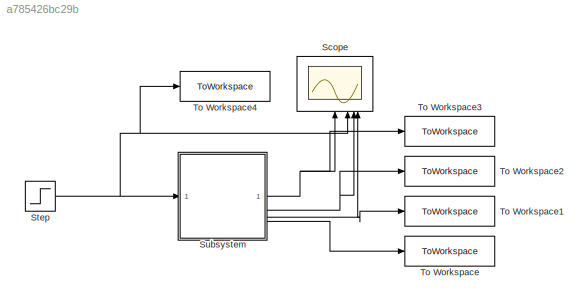
MODEL slx_a785426bc29b
KIND model
CONFIG AbsTol = auto
CONFIG EnableMultiTasking = off
CONFIG FixedStep = auto
CONFIG MaxStep = auto
CONFIG MinStep = auto
CONFIG RelTol = 1e-3
CONFIG SampleTimeConstraint = Unconstrained
CONFIG SolverName = VariableStepAuto
CONFIG StartTime = 0.0
CONFIG StopTime = 30
BLOCK [Scope] Scope
  Floating = off
  NameLocation = right
  NumInputPorts = 4
  ScopeSpecificationString = Simulink.scopes.TimeScopeBlockCfg('CurrentConfiguration', extmgr.ConfigurationSet(extmgr.Configuration('Core','General UI',true),extmgr.Configuration('Core','Source UI',true),extmgr.Configuration('Sources','WiredSimulink',true,'SampleTime','0.1'),extmgr.Configuration('Visuals','Time Domain',true,'SerializedDisplays',{struct('MinYLimReal','-0.17292','MaxYLimReal','1.55626','YLabelReal','','MinYLimM...<+1482ch>
BLOCK [Step] Step
  After = 0.3
  SampleTime = 0
  Time = 14
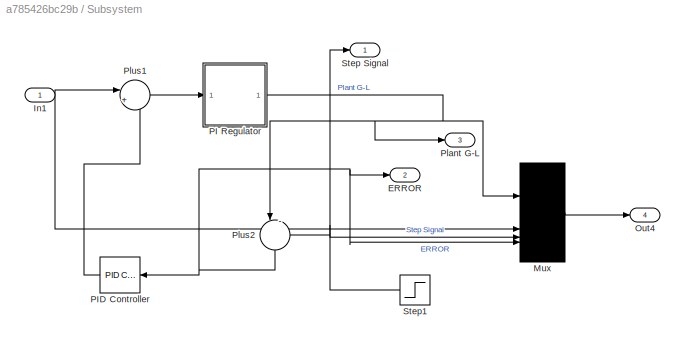
BLOCK [SubSystem] Subsystem
BLOCK [Outport] Subsystem/ERROR
  Port = 2
BLOCK [Inport] Subsystem/In1
BLOCK [Mux] Subsystem/Mux
  DisplayOption = bar
BLOCK [Outport] Subsystem/Out4
  Port = 4
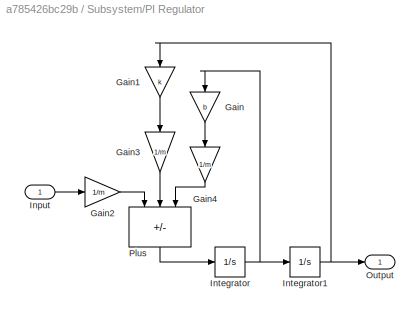
BLOCK [SubSystem] Subsystem/PI Regulator
BLOCK [Gain] Subsystem/PI Regulator/Gain
  Gain = b
  NameLocation = right
BLOCK [Gain] Subsystem/PI Regulator/Gain1
  Gain = k
  NameLocation = right
BLOCK [Gain] Subsystem/PI Regulator/Gain2
  Gain = 1/m
BLOCK [Gain] Subsystem/PI Regulator/Gain3
  Gain = 1/m
  NameLocation = left
BLOCK [Gain] Subsystem/PI Regulator/Gain4
  Gain = 1/m
  NameLocation = left
BLOCK [Inport] Subsystem/PI Regulator/Input
BLOCK [Integrator] Subsystem/PI Regulator/Integrator
BLOCK [Integrator] Subsystem/PI Regulator/Integrator1
BLOCK [Outport] Subsystem/PI Regulator/Output
BLOCK [Sum] Subsystem/PI Regulator/Plus
  IconShape = rectangular
  Inputs = +--
  NameLocation = left
BLOCK [Reference] Subsystem/PID Controller  REF=slpidlib/PID Controller
  LibrarySourceBlock = simulink/Continuous/PID Controller
  SourceBlock = slpidlib/PID Controller
  SourceType = PID 1dof
BLOCK [Outport] Subsystem/Plant G-L
  Port = 3
BLOCK [Sum] Subsystem/Plus1
  Inputs = |++
BLOCK [Sum] Subsystem/Plus2
  Inputs = |-+
  NameLocation = left
BLOCK [Outport] Subsystem/Step Signal
BLOCK [Step] Subsystem/Step1
  After = 1.3
  Before = 1
  NameLocation = top
  SampleTime = 0
  Time = 10
BLOCK [ToWorkspace] To Workspace
  FixptAsFi = on
  MaxDataPoints = inf
  SampleTime = -1
  SaveFormat = Timeseries
  VariableName = Step
BLOCK [ToWorkspace] To Workspace1
  FixptAsFi = on
  MaxDataPoints = inf
  SampleTime = -1
  SaveFormat = Timeseries
  VariableName = Plant
BLOCK [ToWorkspace] To Workspace2
  FixptAsFi = on
  MaxDataPoints = inf
  SampleTime = -1
  SaveFormat = Timeseries
  VariableName = Error
BLOCK [ToWorkspace] To Workspace3
  FixptAsFi = on
  MaxDataPoints = inf
  SampleTime = -1
  SaveFormat = Timeseries
  VariableName = StepSignal
BLOCK [ToWorkspace] To Workspace4
  FixptAsFi = on
  MaxDataPoints = inf
  SampleTime = -1
  SaveFormat = Timeseries
  VariableName = StepSignal1
NET Step:1 -> Scope:2, Subsystem:1, To Workspace4:1
NET Subsystem/In1:1 -> Subsystem/Mux:2, Subsystem/Plus1:1
LINE Subsystem/Mux:1 -> Subsystem/Out4:1
LINE Subsystem/PI Regulator/Gain1:1 -> Subsystem/PI Regulator/Gain3:1
LINE Subsystem/PI Regulator/Gain2:1 -> Subsystem/PI Regulator/Plus:1
LINE Subsystem/PI Regulator/Gain3:1 -> Subsystem/PI Regulator/Plus:2
LINE Subsystem/PI Regulator/Gain4:1 -> Subsystem/PI Regulator/Plus:3
LINE Subsystem/PI Regulator/Gain:1 -> Subsystem/PI Regulator/Gain4:1
LINE Subsystem/PI Regulator/Input:1 -> Subsystem/PI Regulator/Gain2:1
NET Subsystem/PI Regulator/Integrator1:1 -> Subsystem/PI Regulator/Gain1:1, Subsystem/PI Regulator/Output:1
NET Subsystem/PI Regulator/Integrator:1 -> Subsystem/PI Regulator/Gain:1, Subsystem/PI Regulator/Integrator1:1
LINE Subsystem/PI Regulator/Plus:1 -> Subsystem/PI Regulator/Integrator:1
NET Subsystem/PI Regulator:1 -> Subsystem/Mux:1, Subsystem/Plant G-L:1, Subsystem/Plus2:1
LINE Subsystem/PID Controller:1 -> Subsystem/Plus1:2
LINE Subsystem/Plus1:1 -> Subsystem/PI Regulator:1
NET Subsystem/Plus2:1 -> Subsystem/ERROR:1, Subsystem/Mux:4, Subsystem/PID Controller:1
NET Subsystem/Step1:1 -> Subsystem/Mux:3, Subsystem/Plus2:2, Subsystem/Step Signal:1
NET Subsystem:1 -> Scope:1, To Workspace3:1
NET Subsystem:2 -> Scope:3, To Workspace2:1
NET Subsystem:3 -> Scope:4, To Workspace1:1
LINE Subsystem:4 -> To Workspace:1
note: NET lines group one-source signal fan-out (src -> all destinations, sorted); 1:1 wires keep LINE
